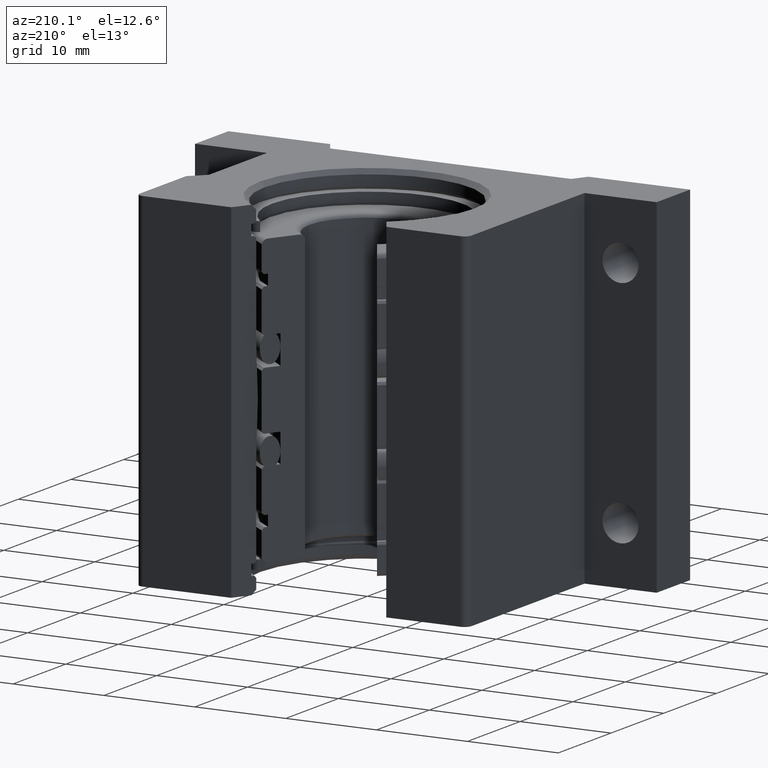
[diagram: clean part render]
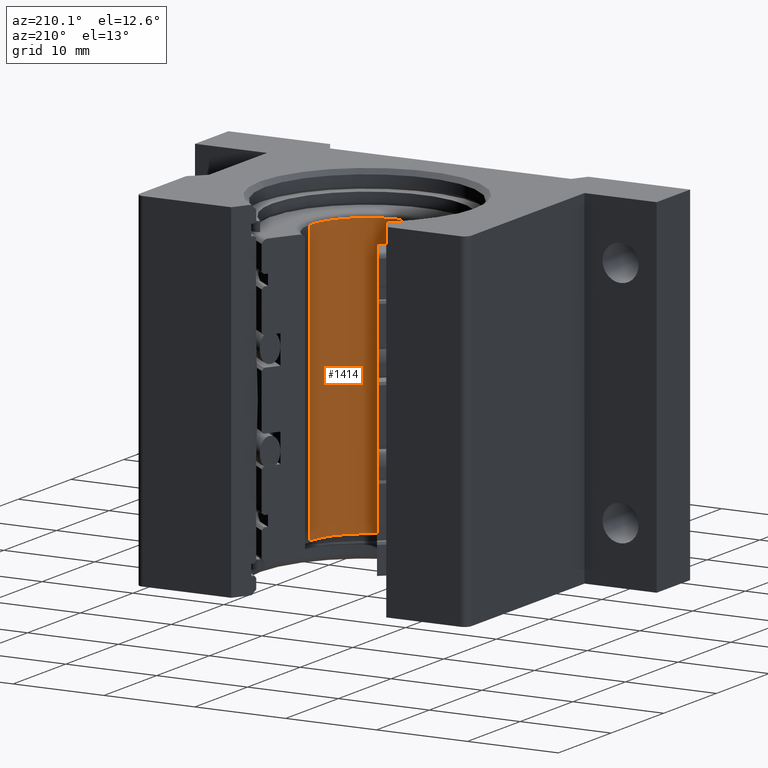
[diagram: same view with one face highlighted and labeled with its STEP entity id]
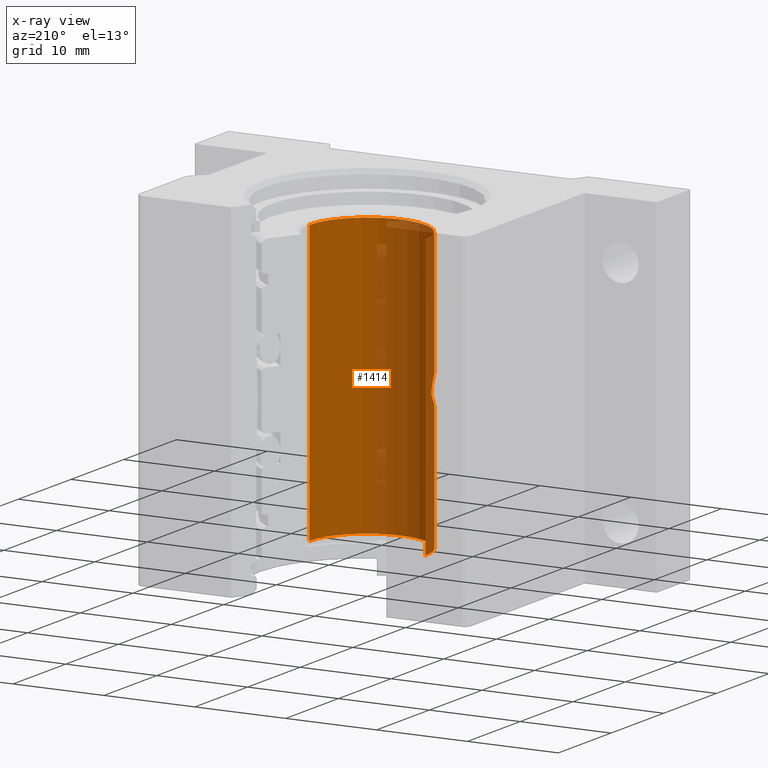
[diagram: x-ray of the same camera — body ghosted, the highlighted face saturated]
A machine part, auxiliary view. The second image highlights one B-rep face of the part: STEP entity #1414.
The next image is the same camera in x-ray: the body ghosted, the highlighted face saturated — about 45% of this face is hidden behind the body in this view.
In plain terms, the highlighted cylindrical surface (partial cylindrical patch) has radius 6.3875 mm, axis along (0, 0, 1).
Its self-contained STEP definition (entity closure, byte-faithful):
#121 = CARTESIAN_POINT ( 'NONE',  ( 0.000000000000000000, -7.023156803840997818E-17, -0.6070534806292791075 ) ) ;
#186 = CARTESIAN_POINT ( 'NONE',  ( -0.2439358298048607543, -0.06115000102030748036, 0.02388705289666631301 ) ) ;
#191 = ORIENTED_EDGE ( 'NONE', *, *, #9851, .F. ) ;
#207 = VERTEX_POINT ( 'NONE', #393 ) ;
#228 = CARTESIAN_POINT ( 'NONE',  ( -0.2357091275550614318, -0.08774627013330706105, -0.05707217112475283793 ) ) ;
#233 = CARTESIAN_POINT ( 'NONE',  ( -0.1612159018651593556, -0.1930002813749330248, 0.004937721811652430980 ) ) ;
#277 = CARTESIAN_POINT ( 'NONE',  ( -0.2202756960024027377, -0.1214161298455369853, -0.06804316728623253929 ) ) ;
#338 = CARTESIAN_POINT ( 'NONE',  ( -0.2423509600068477488, -0.06725540464185511547, -0.03720681135190476163 ) ) ;
#343 = CARTESIAN_POINT ( 'NONE',  ( -0.1659590929459225928, -0.1889564474500798619, 0.02352353320959476787 ) ) ;
#393 = CARTESIAN_POINT ( 'NONE',  ( 0.2514750000000000041, 9.098881627026311375E-32, 0.6070534806292791075 ) ) ;
#420 = CARTESIAN_POINT ( 'NONE',  ( -0.2449298407539238498, -0.05700042748311220930, 4.330278999035828847E-18 ) ) ;
#440 = CARTESIAN_POINT ( 'NONE',  ( -0.2308078491226132622, -0.09994598175594966716, 0.06337339157429477954 ) ) ;
#540 = B_SPLINE_CURVE_WITH_KNOTS ( 'NONE', 3,
 ( #7729, #4469, #7778, #9328, #5225, #7620, #7671, #2683, #9496, #1947, #1252, #4514, #7828, #6972, #277, #5179, #10246, #8518, #8412, #228, #3537, #1999, #338, #8576, #6872, #9283, #5279, #2747 ),
 .UNSPECIFIED., .F., .F.,
 ( 4, 2, 2, 2, 2, 2, 2, 2, 2, 2, 2, 2, 2, 4 ),
 ( 1.972486108042519000E-19, 0.0003696201746886315902, 0.0007392403493772629636, 0.001108860524065894337, 0.001478480698754525710, 0.002217721048131789975, 0.002956961397509053589, 0.003326581572197686697, 0.003696201746886320673, 0.004065821921574953347, 0.004435442096263586889, 0.005174682445640853105, 0.005544302620329485780, 0.005913922795018119322 ),
 .UNSPECIFIED. ) ;
#780 = EDGE_CURVE ( 'NONE', #10410, #2773, #3677, .T. ) ;
#1057 = CARTESIAN_POINT ( 'NONE',  ( -0.1642438018598184335, -0.1904364876779704174, 0.01909041423162195772 ) ) ;
#1100 = CARTESIAN_POINT ( 'NONE',  ( -0.1719848028275820506, -0.1835484649320454631, 0.03570853318393590881 ) ) ;
#1152 = CARTESIAN_POINT ( 'NONE',  ( -0.1880073094094500130, -0.1671960743066011057, 0.05392569105869175067 ) ) ;
#1252 = CARTESIAN_POINT ( 'NONE',  ( -0.1937265309254581624, -0.1606051455704369801, -0.05848405206275578139 ) ) ;
#1373 = CARTESIAN_POINT ( 'NONE',  ( -0.2514750000000000041, 3.079680538155807146E-17, -0.6070534806292791075 ) ) ;
#1375 = VECTOR ( 'NONE', #3688, 39.37007874015748143 ) ;
#1414 = ADVANCED_FACE ( 'NONE', ( #3278, #4800 ), #7307, .F. ) ;
#1842 = CARTESIAN_POINT ( 'NONE',  ( -0.2371133660569733903, -0.08385223374325921630, 0.05434534505839850455 ) ) ;
#1947 = CARTESIAN_POINT ( 'NONE',  ( -0.1880078194129781721, -0.1671985484371129316, -0.05393454112148829416 ) ) ;
#1956 = CARTESIAN_POINT ( 'NONE',  ( -0.2405350601461765936, -0.07342666659063439016, 0.04457601599677980114 ) ) ;
#1999 = CARTESIAN_POINT ( 'NONE',  ( -0.2407078420239467109, -0.07318860780505416497, -0.04505281047915767056 ) ) ;
#2417 = AXIS2_PLACEMENT_3D ( 'NONE', #7868, #6210, #6145 ) ;
#2569 = CARTESIAN_POINT ( 'NONE',  ( 0.2514750000000000041, 1.061536189819736218E-31, -0.6070534806292791075 ) ) ;
#2683 = CARTESIAN_POINT ( 'NONE',  ( -0.1772201854514668384, -0.1784502925311599320, -0.04224490971026441388 ) ) ;
#2691 = CARTESIAN_POINT ( 'NONE',  ( -0.1618817956568610328, -0.1924483476764593248, 0.009853873766778058554 ) ) ;
#2747 = CARTESIAN_POINT ( 'NONE',  ( -0.2449298407539238498, -0.05700042748311220930, 4.330278999035828847E-18 ) ) ;
#2773 = VERTEX_POINT ( 'NONE', #3351 ) ;
#2790 = CIRCLE ( 'NONE', #8133, 0.2514750000000000041 ) ;
#2937 = VERTEX_POINT ( 'NONE', #420 ) ;
#2980 = AXIS2_PLACEMENT_3D ( 'NONE', #10577, #9020, #8268 ) ;
#3036 = EDGE_CURVE ( 'NONE', #10410, #7967, #2790, .T. ) ;
#3278 = FACE_BOUND ( 'NONE', #4524, .T. ) ;
#3351 = CARTESIAN_POINT ( 'NONE',  ( -0.2514750000000000041, 3.079680538155805298E-17, 0.6070534806292791075 ) ) ;
#3487 = CARTESIAN_POINT ( 'NONE',  ( -0.2204040913216174791, -0.1214738460483382326, 0.06841786469486425826 ) ) ;
#3537 = CARTESIAN_POINT ( 'NONE',  ( -0.2370841535336806472, -0.08393491670953807937, -0.05440753492173888012 ) ) ;
#3545 = CARTESIAN_POINT ( 'NONE',  ( -0.2422106090513209686, -0.06769498791731250187, 0.03691829307636565471 ) ) ;
#3677 = LINE ( 'NONE', #8554, #6805 ) ;
#3688 = DIRECTION ( 'NONE',  ( 0.000000000000000000, 0.000000000000000000, 1.000000000000000000 ) ) ;
#4246 = CARTESIAN_POINT ( 'NONE',  ( -0.2443094360473698212, -0.05961314960012163711, 0.01929778899636097264 ) ) ;
#4306 = CARTESIAN_POINT ( 'NONE',  ( -0.1772151322256162176, -0.1785947159497629777, 0.04261573332578312556 ) ) ;
#4359 = CARTESIAN_POINT ( 'NONE',  ( -0.2103867954383529248, -0.1380987148754976301, 0.06724488063882831657 ) ) ;
#4469 = CARTESIAN_POINT ( 'NONE',  ( -0.1612159018651593556, -0.1930002813749331636, -0.004948093831824691355 ) ) ;
#4484 = EDGE_CURVE ( 'NONE', #2937, #8544, #7818, .T. ) ;
#4513 = CARTESIAN_POINT ( 'NONE',  ( -0.1612159018651593001, -0.1930002813749330526, 4.568710677947664776E-17 ) ) ;
#4514 = CARTESIAN_POINT ( 'NONE',  ( -0.2049230778548035425, -0.1460496960990602944, -0.06515375668913223062 ) ) ;
#4524 = EDGE_LOOP ( 'NONE', ( #191, #5560 ) ) ;
#4800 = FACE_OUTER_BOUND ( 'NONE', #10112, .T. ) ;
#5061 = CARTESIAN_POINT ( 'NONE',  ( -0.2449298407539237665, -0.05700042748311223706, 0.004853853326148891735 ) ) ;
#5130 = CARTESIAN_POINT ( 'NONE',  ( -0.1937600671062474078, -0.1605619570002227436, 0.05850461200356887187 ) ) ;
#5179 = CARTESIAN_POINT ( 'NONE',  ( -0.2247990737761634550, -0.1128212536067129124, -0.06704019745607049663 ) ) ;
#5180 = CIRCLE ( 'NONE', #2417, 0.2514750000000000041 ) ;
#5225 = CARTESIAN_POINT ( 'NONE',  ( -0.1659168046032505062, -0.1889935437828127451, -0.02342412049718865102 ) ) ;
#5228 = DIRECTION ( 'NONE',  ( 0.000000000000000000, 1.000000000000000000, -2.715824628356957328E-16 ) ) ;
#5231 = CARTESIAN_POINT ( 'NONE',  ( -0.2250059926163185675, -0.1126904004554763333, 0.06746930555280040986 ) ) ;
#5279 = CARTESIAN_POINT ( 'NONE',  ( -0.2449298407539237943, -0.05700042748311223012, -0.004864049174868782278 ) ) ;
#5560 = ORIENTED_EDGE ( 'NONE', *, *, #4484, .F. ) ;
#6145 = DIRECTION ( 'NONE',  ( 0.000000000000000000, 1.000000000000000000, 0.000000000000000000 ) ) ;
#6155 = CARTESIAN_POINT ( 'NONE',  ( -0.2325927231958374863, -0.09570222686026577663, 0.06153743603011151142 ) ) ;
#6210 = DIRECTION ( 'NONE',  ( 0.000000000000000000, -1.224646799147353207E-16, 1.000000000000000000 ) ) ;
#6298 = ORIENTED_EDGE ( 'NONE', *, *, #780, .T. ) ;
#6805 = VECTOR ( 'NONE', #8615, 39.37007874015748143 ) ;
#6872 = CARTESIAN_POINT ( 'NONE',  ( -0.2443067882569585070, -0.05962402749928875229, -0.01933271792250349300 ) ) ;
#6877 = CARTESIAN_POINT ( 'NONE',  ( -0.2395249951631830410, -0.07669238657571920970, 0.04809286173589056440 ) ) ;
#6972 = CARTESIAN_POINT ( 'NONE',  ( -0.2178446739253916131, -0.1257249899997472664, -0.06812284730770697128 ) ) ;
#7307 = CYLINDRICAL_SURFACE ( 'NONE', #2980, 0.2514750000000000041 ) ;
#7511 = CARTESIAN_POINT ( 'NONE',  ( -0.2449298407539238498, -0.05700042748311220930, 4.330278999035828847E-18 ) ) ;
#7620 = CARTESIAN_POINT ( 'NONE',  ( -0.1699309458805502715, -0.1853926084650644457, -0.03156888769717413473 ) ) ;
#7667 = LINE ( 'NONE', #10242, #1375 ) ;
#7671 = CARTESIAN_POINT ( 'NONE',  ( -0.1722743744099089758, -0.1832294762247148046, -0.03536801122329295832 ) ) ;
#7675 = CARTESIAN_POINT ( 'NONE',  ( -0.1612159018651593001, -0.1930002813749330526, 4.568710677947664776E-17 ) ) ;
#7729 = CARTESIAN_POINT ( 'NONE',  ( -0.1612159018651593001, -0.1930002813749330526, 4.568710677947664776E-17 ) ) ;
#7778 = CARTESIAN_POINT ( 'NONE',  ( -0.1618585949190606277, -0.1924678157254810507, -0.009728075032190607041 ) ) ;
#7801 = EDGE_CURVE ( 'NONE', #7967, #207, #7667, .T. ) ;
#7818 = B_SPLINE_CURVE_WITH_KNOTS ( 'NONE', 3,
 ( #7511, #5061, #8358, #4246, #186, #8519, #3545, #1956, #6877, #1842, #7835, #6155, #440, #5231, #3487, #4359, #8417, #5130, #1152, #4306, #1100, #343, #1057, #2691, #233, #7675 ),
 .UNSPECIFIED., .F., .F.,
 ( 4, 2, 2, 2, 2, 2, 2, 2, 2, 2, 2, 2, 4 ),
 ( 0.005913922795018119322, 0.006282768184903093044, 0.006651613574788066766, 0.007020458964673040488, 0.007389304354558014210, 0.007758149744442987931, 0.008126995134327959919, 0.008864685914097907363, 0.009602376693867853072, 0.01034006747363780052, 0.01107775825340774623, 0.01144660364329272081, 0.01181544903317769367 ),
 .UNSPECIFIED. ) ;
#7828 = CARTESIAN_POINT ( 'NONE',  ( -0.2103504077070351141, -0.1381520154571438397, -0.06723112140163106654 ) ) ;
#7835 = CARTESIAN_POINT ( 'NONE',  ( -0.2357387970687158663, -0.08766704435683936314, 0.05702156638751532808 ) ) ;
#7868 = CARTESIAN_POINT ( 'NONE',  ( -0.000000000000000000, -7.023156803840997818E-17, 0.6070534806292791075 ) ) ;
#7967 = VERTEX_POINT ( 'NONE', #2569 ) ;
#8105 = ORIENTED_EDGE ( 'NONE', *, *, #8552, .T. ) ;
#8133 = AXIS2_PLACEMENT_3D ( 'NONE', #121, #9331, #5228 ) ;
#8268 = DIRECTION ( 'NONE',  ( 1.000000000000000000, 0.000000000000000000, 0.000000000000000000 ) ) ;
#8358 = CARTESIAN_POINT ( 'NONE',  ( -0.2448095033620826810, -0.05752508331711308348, 0.009745695743008209178 ) ) ;
#8383 = ORIENTED_EDGE ( 'NONE', *, *, #7801, .F. ) ;
#8412 = CARTESIAN_POINT ( 'NONE',  ( -0.2325683378816142122, -0.09576099910745936028, -0.06156428223898419150 ) ) ;
#8417 = CARTESIAN_POINT ( 'NONE',  ( -0.2048979020852096378, -0.1460820158740929464, 0.06513817654928200085 ) ) ;
#8518 = CARTESIAN_POINT ( 'NONE',  ( -0.2307781089587632173, -0.1000152843609734971, -0.06340150645314727995 ) ) ;
#8519 = CARTESIAN_POINT ( 'NONE',  ( -0.2428897536168379834, -0.06518112668036128710, 0.03269739609636115873 ) ) ;
#8544 = VERTEX_POINT ( 'NONE', #4513 ) ;
#8552 = EDGE_CURVE ( 'NONE', #2773, #207, #5180, .T. ) ;
#8554 = CARTESIAN_POINT ( 'NONE',  ( -0.2514750000000000041, 3.079680538155806530E-17, -0.6212341520640487502 ) ) ;
#8555 = ORIENTED_EDGE ( 'NONE', *, *, #3036, .F. ) ;
#8576 = CARTESIAN_POINT ( 'NONE',  ( -0.2439324012449002044, -0.06116420243158683656, -0.02393000380179404266 ) ) ;
#8615 = DIRECTION ( 'NONE',  ( 0.000000000000000000, 0.000000000000000000, 1.000000000000000000 ) ) ;
#9020 = DIRECTION ( 'NONE',  ( 0.000000000000000000, 0.000000000000000000, 1.000000000000000000 ) ) ;
#9283 = CARTESIAN_POINT ( 'NONE',  ( -0.2448076505824558768, -0.05753299627139639438, -0.009796594785970820160 ) ) ;
#9328 = CARTESIAN_POINT ( 'NONE',  ( -0.1642123091465576834, -0.1904635985275550392, -0.01900153351443613012 ) ) ;
#9331 = DIRECTION ( 'NONE',  ( 0.000000000000000000, 1.224646799147353207E-16, 1.000000000000000000 ) ) ;
#9496 = CARTESIAN_POINT ( 'NONE',  ( -0.1798447414969115421, -0.1758158109062840646, -0.04536729431508804838 ) ) ;
#9851 = EDGE_CURVE ( 'NONE', #8544, #2937, #540, .T. ) ;
#10112 = EDGE_LOOP ( 'NONE', ( #8555, #6298, #8105, #8383 ) ) ;
#10242 = CARTESIAN_POINT ( 'NONE',  ( 0.2514750000000000041, 0.000000000000000000, -0.6212341520640487502 ) ) ;
#10246 = CARTESIAN_POINT ( 'NONE',  ( -0.2268956382952319051, -0.1085355333657527649, -0.06612802326785942320 ) ) ;
#10410 = VERTEX_POINT ( 'NONE', #1373 ) ;
#10577 = CARTESIAN_POINT ( 'NONE',  ( 0.000000000000000000, 0.000000000000000000, -0.6212341520640487502 ) ) ;